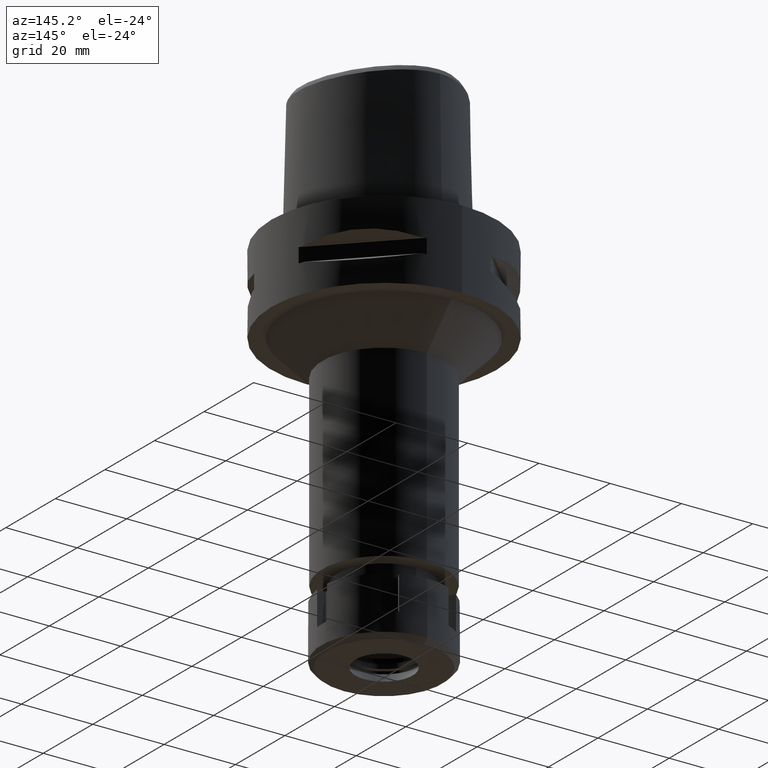
[diagram: clean part render]
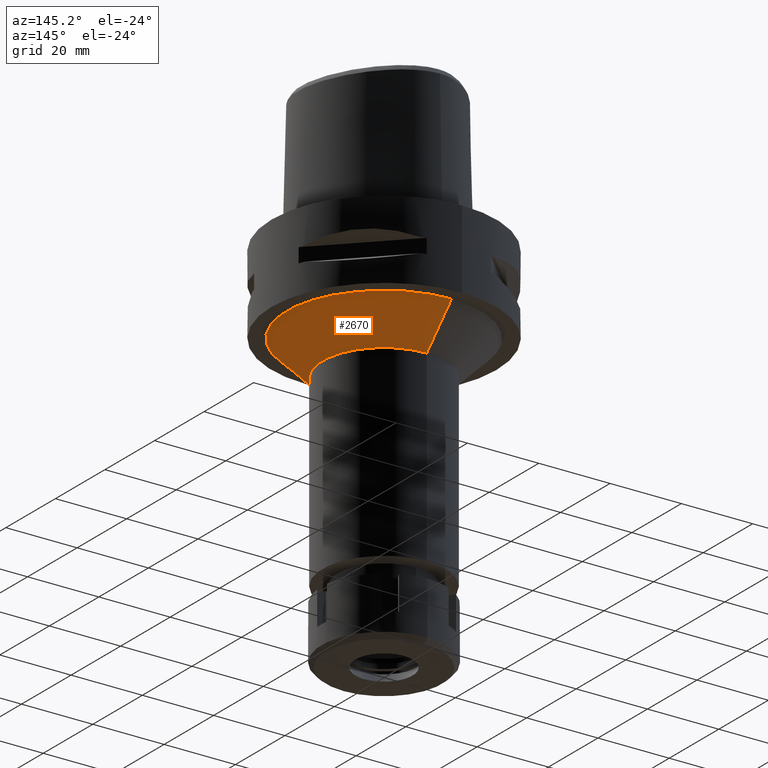
[diagram: same view with one face highlighted and labeled with its STEP entity id]
A machine part, auxiliary view. The second image highlights one B-rep face of the part: STEP entity #2670.
In plain terms, the highlighted conical surface has half-angle 45 deg.
Its self-contained STEP definition (entity closure, byte-faithful):
#116 = CARTESIAN_POINT ( 'NONE',  ( 0.0000000000000000000, 0.0000000000000000000, -32.00000000000000000 ) ) ;
#175 = CARTESIAN_POINT ( 'NONE',  ( 0.0000000000000000000, -27.25000000000000000, -22.00000000000000000 ) ) ;
#199 = ORIENTED_EDGE ( 'NONE', *, *, #289, .F. ) ;
#229 = VERTEX_POINT ( 'NONE', #175 ) ;
#263 = CARTESIAN_POINT ( 'NONE',  ( 0.0000000000000000000, -17.25000000000000000, -32.00000000000000000 ) ) ;
#289 = EDGE_CURVE ( 'NONE', #1543, #4542, #3973, .T. ) ;
#532 = CIRCLE ( 'NONE', #4410, 27.25000000000000000 ) ;
#786 = CARTESIAN_POINT ( 'NONE',  ( 0.0000000000000000000, 17.25000000000000000, -32.00000000000000000 ) ) ;
#848 = EDGE_CURVE ( 'NONE', #1494, #1543, #4552, .T. ) ;
#1148 = DIRECTION ( 'NONE',  ( 0.0000000000000000000, -0.7071067811865474617, -0.7071067811865474617 ) ) ;
#1197 = EDGE_CURVE ( 'NONE', #1494, #229, #532, .T. ) ;
#1257 = DIRECTION ( 'NONE',  ( 0.0000000000000000000, 0.0000000000000000000, -1.000000000000000000 ) ) ;
#1269 = VECTOR ( 'NONE', #1148, 1000.000000000000114 ) ;
#1482 = DIRECTION ( 'NONE',  ( 0.0000000000000000000, 0.0000000000000000000, -1.000000000000000000 ) ) ;
#1494 = VERTEX_POINT ( 'NONE', #5013 ) ;
#1498 = VECTOR ( 'NONE', #1778, 1000.000000000000114 ) ;
#1543 = VERTEX_POINT ( 'NONE', #786 ) ;
#1752 = FACE_OUTER_BOUND ( 'NONE', #3284, .T. ) ;
#1778 = DIRECTION ( 'NONE',  ( 0.0000000000000000000, 0.7071067811865474617, -0.7071067811865474617 ) ) ;
#1800 = AXIS2_PLACEMENT_3D ( 'NONE', #116, #1482, #2794 ) ;
#1838 = CARTESIAN_POINT ( 'NONE',  ( 0.0000000000000000000, 0.0000000000000000000, -27.00000000000000000 ) ) ;
#2017 = ORIENTED_EDGE ( 'NONE', *, *, #1197, .T. ) ;
#2670 = ADVANCED_FACE ( 'NONE', ( #1752 ), #3232, .T. ) ;
#2794 = DIRECTION ( 'NONE',  ( 0.0000000000000000000, 1.000000000000000000, 0.0000000000000000000 ) ) ;
#3055 = LINE ( 'NONE', #4763, #1498 ) ;
#3135 = AXIS2_PLACEMENT_3D ( 'NONE', #1838, #3565, #3513 ) ;
#3232 = CONICAL_SURFACE ( 'NONE', #3135, 22.25000000000000000, 0.7853981633972997312 ) ;
#3284 = EDGE_LOOP ( 'NONE', ( #2017, #4452, #199, #4319 ) ) ;
#3513 = DIRECTION ( 'NONE',  ( 0.0000000000000000000, 1.000000000000000000, 0.0000000000000000000 ) ) ;
#3565 = DIRECTION ( 'NONE',  ( 0.0000000000000000000, 0.0000000000000000000, 1.000000000000000000 ) ) ;
#3973 = CIRCLE ( 'NONE', #1800, 17.25000000000000000 ) ;
#4083 = CARTESIAN_POINT ( 'NONE',  ( 0.0000000000000000000, 27.25000000000000000, -22.00000000000000000 ) ) ;
#4319 = ORIENTED_EDGE ( 'NONE', *, *, #848, .F. ) ;
#4410 = AXIS2_PLACEMENT_3D ( 'NONE', #5225, #1257, #4609 ) ;
#4452 = ORIENTED_EDGE ( 'NONE', *, *, #5127, .T. ) ;
#4542 = VERTEX_POINT ( 'NONE', #263 ) ;
#4552 = LINE ( 'NONE', #4083, #1269 ) ;
#4609 = DIRECTION ( 'NONE',  ( 0.0000000000000000000, 1.000000000000000000, 0.0000000000000000000 ) ) ;
#4763 = CARTESIAN_POINT ( 'NONE',  ( 0.0000000000000000000, -27.25000000000000000, -22.00000000000000000 ) ) ;
#5013 = CARTESIAN_POINT ( 'NONE',  ( 0.0000000000000000000, 27.25000000000000000, -22.00000000000000000 ) ) ;
#5127 = EDGE_CURVE ( 'NONE', #229, #4542, #3055, .T. ) ;
#5225 = CARTESIAN_POINT ( 'NONE',  ( 0.0000000000000000000, 0.0000000000000000000, -22.00000000000000000 ) ) ;